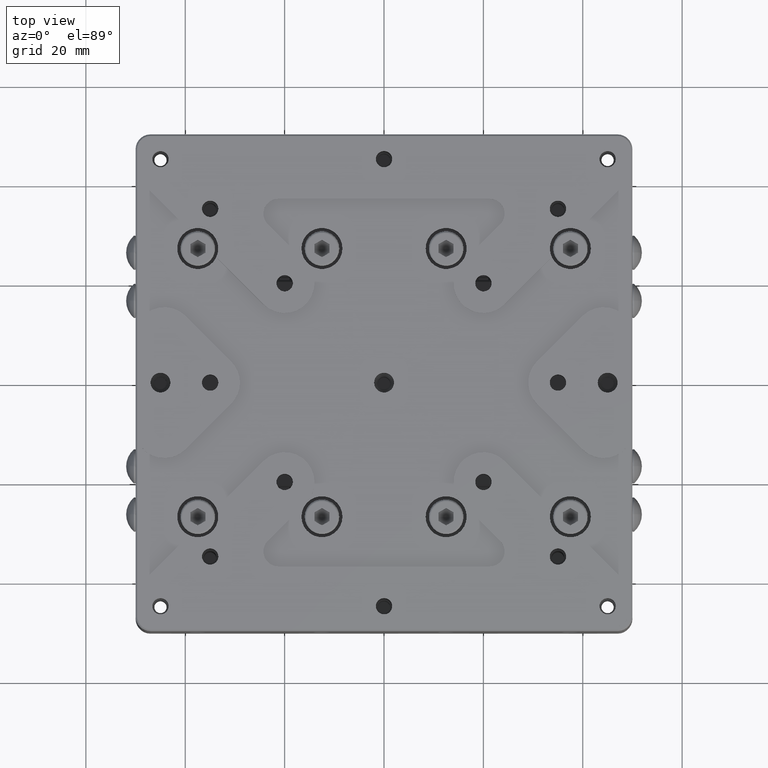
[diagram: clean part render]
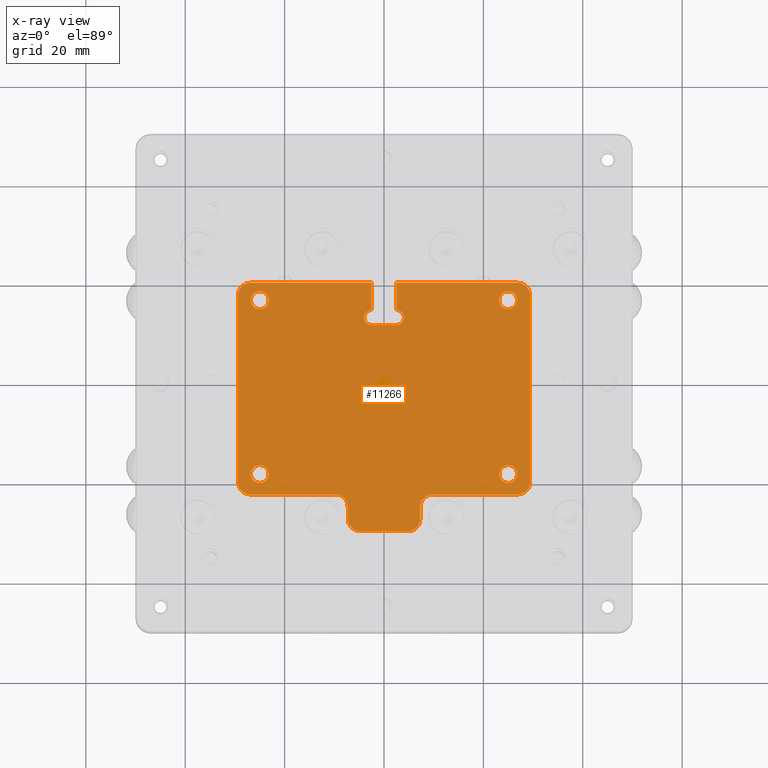
[diagram: x-ray — body ghosted, one internal face saturated and labeled with its STEP entity id]
A machine part, top view, then the same camera in x-ray: the body is ghosted and one INTERNAL B-rep face — a face not visible from any outside direction — is saturated and labeled: STEP entity #11266.
In plain terms, the highlighted planar face has unit normal (0, 0, -1).
Its self-contained STEP definition (entity closure, byte-faithful):
#43 = CARTESIAN_POINT ( 'NONE',  ( -2.500000000000000000, 0.000000000000000000, -8.300000000000000711 ) ) ;
#57 = VERTEX_POINT ( 'NONE', #25783 ) ;
#198 = LINE ( 'NONE', #4499, #8644 ) ;
#263 = DIRECTION ( 'NONE',  ( 1.000000000000000000, 0.000000000000000000, 0.000000000000000000 ) ) ;
#289 = CARTESIAN_POINT ( 'NONE',  ( 9.799999999999998934, -22.09999999839769913, -8.299999999962889063 ) ) ;
#466 = EDGE_LOOP ( 'NONE', ( #25840, #602 ) ) ;
#485 = CARTESIAN_POINT ( 'NONE',  ( -25.00000000000000000, 17.00000000000000000, -8.300000000000000711 ) ) ;
#500 = CARTESIAN_POINT ( 'NONE',  ( 2.500000000000000000, 13.50000000000000000, -8.300000000000000711 ) ) ;
#602 = ORIENTED_EDGE ( 'NONE', *, *, #10207, .F. ) ;
#612 = DIRECTION ( 'NONE',  ( 0.000000000000000000, 0.000000000000000000, 1.000000000000000000 ) ) ;
#626 = VERTEX_POINT ( 'NONE', #24439 ) ;
#631 = DIRECTION ( 'NONE',  ( 0.000000000000000000, -1.000000000000000000, 0.000000000000000000 ) ) ;
#852 = CIRCLE ( 'NONE', #4391, 1.799999999999999600 ) ;
#934 = CARTESIAN_POINT ( 'NONE',  ( -25.00000000000000000, -18.00000000000000000, -8.300000000000000711 ) ) ;
#1128 = EDGE_CURVE ( 'NONE', #57, #3636, #5505, .T. ) ;
#1392 = EDGE_CURVE ( 'NONE', #19921, #23276, #15421, .T. ) ;
#1412 = ORIENTED_EDGE ( 'NONE', *, *, #10201, .F. ) ;
#1420 = CARTESIAN_POINT ( 'NONE',  ( 25.00000000000000000, 17.00000000000000000, -8.300000000000000711 ) ) ;
#1450 = EDGE_CURVE ( 'NONE', #20060, #9101, #8128, .T. ) ;
#1626 = EDGE_CURVE ( 'NONE', #24588, #8090, #5462, .T. ) ;
#1817 = EDGE_CURVE ( 'NONE', #18175, #14577, #19442, .T. ) ;
#1825 = EDGE_CURVE ( 'NONE', #6957, #10404, #11731, .T. ) ;
#2186 = CIRCLE ( 'NONE', #23176, 1.500000000000000000 ) ;
#2339 = CARTESIAN_POINT ( 'NONE',  ( 23.19999999999999929, -18.00000000000000000, -8.300000000000000711 ) ) ;
#2389 = CARTESIAN_POINT ( 'NONE',  ( -9.799999999999998934, -22.09999999996345110, -8.299999999963439734 ) ) ;
#2447 = CIRCLE ( 'NONE', #6006, 1.799999999999999600 ) ;
#2467 = CARTESIAN_POINT ( 'NONE',  ( 4.000000000000000000, 13.50000000000000000, -8.300000000000000711 ) ) ;
#2688 = CARTESIAN_POINT ( 'NONE',  ( 29.39999999753645099, 17.99999997678999719, -8.299999997234408511 ) ) ;
#2747 = DIRECTION ( 'NONE',  ( 0.000000000000000000, 0.000000000000000000, -1.000000000000000000 ) ) ;
#3020 = AXIS2_PLACEMENT_3D ( 'NONE', #17139, #2747, #8906 ) ;
#3028 = CARTESIAN_POINT ( 'NONE',  ( -29.39999999754850180, -19.59999997911500103, -8.299999997192498924 ) ) ;
#3049 = DIRECTION ( 'NONE',  ( 0.000000000000000000, 1.000000000000000000, 0.000000000000000000 ) ) ;
#3073 = CARTESIAN_POINT ( 'NONE',  ( -7.300000001143709838, -24.59999998012499844, -8.300000002673369792 ) ) ;
#3077 = ORIENTED_EDGE ( 'NONE', *, *, #14366, .F. ) ;
#3098 = CARTESIAN_POINT ( 'NONE',  ( -2.500000000000000000, 15.00000000000000000, -8.300000000000000711 ) ) ;
#3219 = VECTOR ( 'NONE', #21913, 1000.000000000000000 ) ;
#3357 = EDGE_CURVE ( 'NONE', #10404, #6957, #17144, .T. ) ;
#3528 = FACE_OUTER_BOUND ( 'NONE', #4522, .T. ) ;
#3575 = ORIENTED_EDGE ( 'NONE', *, *, #25139, .F. ) ;
#3636 = VERTEX_POINT ( 'NONE', #7237 ) ;
#3668 = DIRECTION ( 'NONE',  ( -1.000000000000000000, 0.000000000000000000, 0.000000000000000000 ) ) ;
#3801 = FACE_BOUND ( 'NONE', #6203, .T. ) ;
#3817 = DIRECTION ( 'NONE',  ( 0.000000000000000000, 0.000000000000000000, 1.000000000000000000 ) ) ;
#3919 = DIRECTION ( 'NONE',  ( 0.000000000000000000, 0.000000000000000000, 1.000000000000000000 ) ) ;
#4057 = VERTEX_POINT ( 'NONE', #10893 ) ;
#4063 = DIRECTION ( 'NONE',  ( -1.000000000000000000, 0.000000000000000000, 0.000000000000000000 ) ) ;
#4215 = CIRCLE ( 'NONE', #6906, 1.799999999999999600 ) ;
#4391 = AXIS2_PLACEMENT_3D ( 'NONE', #11927, #3817, #14023 ) ;
#4477 = CIRCLE ( 'NONE', #18764, 1.799999999999999600 ) ;
#4499 = CARTESIAN_POINT ( 'NONE',  ( 0.000000000000000000, -29.49999999685000063, -8.300000000000000711 ) ) ;
#4522 = EDGE_LOOP ( 'NONE', ( #10870, #18336, #13216, #13798, #19039, #3575, #17064, #7649, #14482, #13995, #13212, #22723, #3077, #8778, #6290, #14325, #12187, #19127, #25537, #10980, #13240, #1412, #7363 ) ) ;
#4722 = EDGE_CURVE ( 'NONE', #19634, #22404, #8037, .T. ) ;
#4845 = CARTESIAN_POINT ( 'NONE',  ( 0.000000000000000000, 20.50000000000000000, -8.300000000000000711 ) ) ;
#4952 = VERTEX_POINT ( 'NONE', #25515 ) ;
#4979 = CARTESIAN_POINT ( 'NONE',  ( 2.500000000000000000, 20.50000000000000000, -8.300000000000000711 ) ) ;
#5051 = EDGE_CURVE ( 'NONE', #12380, #13897, #22019, .T. ) ;
#5059 = DIRECTION ( 'NONE',  ( 0.000000000000000000, 0.000000000000000000, 1.000000000000000000 ) ) ;
#5214 = AXIS2_PLACEMENT_3D ( 'NONE', #20655, #20375, #27233 ) ;
#5234 = LINE ( 'NONE', #20330, #8897 ) ;
#5240 = DIRECTION ( 'NONE',  ( -1.000000000000000000, 0.000000000000000000, 0.000000000000000000 ) ) ;
#5398 = LINE ( 'NONE', #17703, #10178 ) ;
#5462 = CIRCLE ( 'NONE', #15280, 2.499999996842236616 ) ;
#5505 = CIRCLE ( 'NONE', #9513, 1.799999999999999600 ) ;
#5550 = AXIS2_PLACEMENT_3D ( 'NONE', #1420, #14514, #25034 ) ;
#5665 = CARTESIAN_POINT ( 'NONE',  ( 0.000000000000000000, -22.10000000000000142, -8.300000000000000711 ) ) ;
#5749 = EDGE_CURVE ( 'NONE', #9717, #15556, #26241, .T. ) ;
#5784 = DIRECTION ( 'NONE',  ( 0.000000000000000000, 0.000000000000000000, -1.000000000000000000 ) ) ;
#5887 = FACE_BOUND ( 'NONE', #466, .T. ) ;
#6006 = AXIS2_PLACEMENT_3D ( 'NONE', #485, #5059, #17911 ) ;
#6029 = FACE_BOUND ( 'NONE', #18656, .T. ) ;
#6203 = EDGE_LOOP ( 'NONE', ( #9043, #19188 ) ) ;
#6274 = CIRCLE ( 'NONE', #15190, 2.499999999966254993 ) ;
#6290 = ORIENTED_EDGE ( 'NONE', *, *, #1392, .F. ) ;
#6369 = CARTESIAN_POINT ( 'NONE',  ( 26.80000000000000071, 17.00000000000000000, -8.300000000000000711 ) ) ;
#6392 = VERTEX_POINT ( 'NONE', #9826 ) ;
#6456 = DIRECTION ( 'NONE',  ( 1.000000000000000000, 0.000000000000000000, 0.000000000000000000 ) ) ;
#6787 = VERTEX_POINT ( 'NONE', #22398 ) ;
#6906 = AXIS2_PLACEMENT_3D ( 'NONE', #12848, #3919, #23637 ) ;
#6957 = VERTEX_POINT ( 'NONE', #18466 ) ;
#6979 = CIRCLE ( 'NONE', #17229, 1.799999999999999600 ) ;
#7139 = VERTEX_POINT ( 'NONE', #3073 ) ;
#7178 = CARTESIAN_POINT ( 'NONE',  ( -29.39999999754850180, -0.8000000000000000444, -8.299999997548498598 ) ) ;
#7215 = DIRECTION ( 'NONE',  ( 1.000000000000000000, 0.000000000000000000, 0.000000000000000000 ) ) ;
#7237 = CARTESIAN_POINT ( 'NONE',  ( -23.19999999999999929, -18.00000000000000000, -8.300000000000000711 ) ) ;
#7363 = ORIENTED_EDGE ( 'NONE', *, *, #1450, .F. ) ;
#7622 = VECTOR ( 'NONE', #631, 1000.000000000000000 ) ;
#7649 = ORIENTED_EDGE ( 'NONE', *, *, #19069, .F. ) ;
#7688 = CARTESIAN_POINT ( 'NONE',  ( 29.39999999875570325, -19.59999999999999787, -8.299999998755698272 ) ) ;
#7703 = VERTEX_POINT ( 'NONE', #26776 ) ;
#7833 = DIRECTION ( 'NONE',  ( 0.000000000000000000, 0.000000000000000000, -1.000000000000000000 ) ) ;
#8005 = VERTEX_POINT ( 'NONE', #26462 ) ;
#8037 = LINE ( 'NONE', #5665, #14545 ) ;
#8090 = VERTEX_POINT ( 'NONE', #2688 ) ;
#8128 = CIRCLE ( 'NONE', #16609, 1.500000000000000000 ) ;
#8319 = CARTESIAN_POINT ( 'NONE',  ( 2.500000000000000000, 15.00000000000000000, -8.300000000000000711 ) ) ;
#8398 = CARTESIAN_POINT ( 'NONE',  ( 25.00000000000000000, 17.00000000000000000, -8.300000000000000711 ) ) ;
#8556 = DIRECTION ( 'NONE',  ( 0.000000000000000000, 0.000000000000000000, 1.000000000000000000 ) ) ;
#8644 = VECTOR ( 'NONE', #23239, 1000.000000000000000 ) ;
#8778 = ORIENTED_EDGE ( 'NONE', *, *, #16171, .F. ) ;
#8897 = VECTOR ( 'NONE', #15715, 1000.000000000000000 ) ;
#8906 = DIRECTION ( 'NONE',  ( -1.000000000000000000, 0.000000000000000000, 0.000000000000000000 ) ) ;
#8937 = AXIS2_PLACEMENT_3D ( 'NONE', #12586, #23236, #3668 ) ;
#8981 = ORIENTED_EDGE ( 'NONE', *, *, #1825, .F. ) ;
#8993 = DIRECTION ( 'NONE',  ( 0.000000000000000000, 0.000000000000000000, 1.000000000000000000 ) ) ;
#9043 = ORIENTED_EDGE ( 'NONE', *, *, #1128, .F. ) ;
#9101 = VERTEX_POINT ( 'NONE', #8319 ) ;
#9230 = CIRCLE ( 'NONE', #5214, 2.500000000018554935 ) ;
#9367 = CARTESIAN_POINT ( 'NONE',  ( -4.799999999999999822, -29.49999999842384923, -8.300000000004500222 ) ) ;
#9410 = EDGE_CURVE ( 'NONE', #15556, #7139, #5234, .T. ) ;
#9461 = CARTESIAN_POINT ( 'NONE',  ( 2.500000000000000000, 0.000000000000000000, -8.300000000000000711 ) ) ;
#9513 = AXIS2_PLACEMENT_3D ( 'NONE', #934, #15999, #5240 ) ;
#9522 = AXIS2_PLACEMENT_3D ( 'NONE', #12070, #5784, #20607 ) ;
#9717 = VERTEX_POINT ( 'NONE', #9367 ) ;
#9826 = CARTESIAN_POINT ( 'NONE',  ( 4.799999992160500106, -29.49999999724375144, -8.299999998337138862 ) ) ;
#10063 = VERTEX_POINT ( 'NONE', #289 ) ;
#10178 = VECTOR ( 'NONE', #7215, 1000.000000000000000 ) ;
#10201 = EDGE_CURVE ( 'NONE', #9101, #12343, #24717, .T. ) ;
#10207 = EDGE_CURVE ( 'NONE', #6787, #24829, #4477, .T. ) ;
#10404 = VERTEX_POINT ( 'NONE', #6369 ) ;
#10502 = DIRECTION ( 'NONE',  ( 0.000000000000000000, 0.000000000000000000, -1.000000000000000000 ) ) ;
#10710 = CIRCLE ( 'NONE', #12935, 2.500000000054569682 ) ;
#10858 = EDGE_CURVE ( 'NONE', #8090, #13355, #23822, .T. ) ;
#10870 = ORIENTED_EDGE ( 'NONE', *, *, #25748, .F. ) ;
#10893 = CARTESIAN_POINT ( 'NONE',  ( -23.19999999999999929, 17.00000000000000000, -8.300000000000000711 ) ) ;
#10980 = ORIENTED_EDGE ( 'NONE', *, *, #1626, .F. ) ;
#11263 = LINE ( 'NONE', #4845, #12125 ) ;
#11266 = ADVANCED_FACE ( 'NONE', ( #3528, #5887, #12176, #3801, #6029 ), #20727, .F. ) ;
#11317 = CARTESIAN_POINT ( 'NONE',  ( -2.500000000000000000, 20.49999999684985141, -8.299999998949829205 ) ) ;
#11557 = CIRCLE ( 'NONE', #21385, 1.500000000000000000 ) ;
#11634 = CARTESIAN_POINT ( 'NONE',  ( -25.00000000000000000, -18.00000000000000000, -8.300000000000000711 ) ) ;
#11695 = CARTESIAN_POINT ( 'NONE',  ( -26.89999999128999875, -22.09999999841824803, -8.299999996836509908 ) ) ;
#11714 = EDGE_CURVE ( 'NONE', #12343, #24588, #11263, .T. ) ;
#11731 = CIRCLE ( 'NONE', #12159, 1.799999999999999600 ) ;
#11829 = EDGE_CURVE ( 'NONE', #626, #10063, #15598, .T. ) ;
#11927 = CARTESIAN_POINT ( 'NONE',  ( -25.00000000000000000, 17.00000000000000000, -8.300000000000000711 ) ) ;
#11978 = CIRCLE ( 'NONE', #21352, 2.499999999911781234 ) ;
#12046 = DIRECTION ( 'NONE',  ( 0.000000000000000000, -1.000000000000000000, 0.000000000000000000 ) ) ;
#12070 = CARTESIAN_POINT ( 'NONE',  ( -26.89999999999999858, -19.59999999999999787, -8.299999996836509908 ) ) ;
#12097 = CARTESIAN_POINT ( 'NONE',  ( -7.299999998412539881, -26.99999999215999580, -8.299999999976080289 ) ) ;
#12125 = VECTOR ( 'NONE', #263, 1000.000000000000000 ) ;
#12159 = AXIS2_PLACEMENT_3D ( 'NONE', #8398, #13147, #21699 ) ;
#12176 = FACE_BOUND ( 'NONE', #19019, .T. ) ;
#12187 = ORIENTED_EDGE ( 'NONE', *, *, #11829, .F. ) ;
#12343 = VERTEX_POINT ( 'NONE', #4979 ) ;
#12380 = VERTEX_POINT ( 'NONE', #3028 ) ;
#12586 = CARTESIAN_POINT ( 'NONE',  ( 4.799999999999999822, -27.00000000000000000, -8.299999997461778634 ) ) ;
#12760 = VECTOR ( 'NONE', #17660, 1000.000000000000000 ) ;
#12848 = CARTESIAN_POINT ( 'NONE',  ( 25.00000000000000000, -18.00000000000000000, -8.300000000000000711 ) ) ;
#12935 = AXIS2_PLACEMENT_3D ( 'NONE', #25623, #612, #6456 ) ;
#12943 = VECTOR ( 'NONE', #3049, 1000.000000000000000 ) ;
#13114 = LINE ( 'NONE', #27533, #15905 ) ;
#13147 = DIRECTION ( 'NONE',  ( 0.000000000000000000, 0.000000000000000000, 1.000000000000000000 ) ) ;
#13212 = ORIENTED_EDGE ( 'NONE', *, *, #9410, .F. ) ;
#13216 = ORIENTED_EDGE ( 'NONE', *, *, #25773, .F. ) ;
#13240 = ORIENTED_EDGE ( 'NONE', *, *, #11714, .F. ) ;
#13355 = VERTEX_POINT ( 'NONE', #7688 ) ;
#13798 = ORIENTED_EDGE ( 'NONE', *, *, #1817, .F. ) ;
#13897 = VERTEX_POINT ( 'NONE', #16733 ) ;
#13995 = ORIENTED_EDGE ( 'NONE', *, *, #16380, .F. ) ;
#14023 = DIRECTION ( 'NONE',  ( -1.000000000000000000, 0.000000000000000000, 0.000000000000000000 ) ) ;
#14275 = DIRECTION ( 'NONE',  ( 0.000000000000000000, 0.000000000000000000, -1.000000000000000000 ) ) ;
#14325 = ORIENTED_EDGE ( 'NONE', *, *, #23690, .F. ) ;
#14366 = EDGE_CURVE ( 'NONE', #6392, #9717, #198, .T. ) ;
#14465 = CARTESIAN_POINT ( 'NONE',  ( -26.89999999999999858, 18.00000000000000000, -8.299999999962889063 ) ) ;
#14482 = ORIENTED_EDGE ( 'NONE', *, *, #4722, .F. ) ;
#14514 = DIRECTION ( 'NONE',  ( 0.000000000000000000, 0.000000000000000000, 1.000000000000000000 ) ) ;
#14545 = VECTOR ( 'NONE', #16696, 1000.000000000000000 ) ;
#14577 = VERTEX_POINT ( 'NONE', #3098 ) ;
#14809 = ORIENTED_EDGE ( 'NONE', *, *, #3357, .F. ) ;
#15190 = AXIS2_PLACEMENT_3D ( 'NONE', #27144, #7833, #27410 ) ;
#15280 = AXIS2_PLACEMENT_3D ( 'NONE', #16780, #14275, #4063 ) ;
#15421 = LINE ( 'NONE', #19327, #17100 ) ;
#15556 = VERTEX_POINT ( 'NONE', #12097 ) ;
#15598 = LINE ( 'NONE', #23726, #3219 ) ;
#15715 = DIRECTION ( 'NONE',  ( 0.000000000000000000, 1.000000000000000000, 0.000000000000000000 ) ) ;
#15905 = VECTOR ( 'NONE', #25574, 1000.000000000000000 ) ;
#15999 = DIRECTION ( 'NONE',  ( 0.000000000000000000, 0.000000000000000000, 1.000000000000000000 ) ) ;
#16171 = EDGE_CURVE ( 'NONE', #23276, #6392, #16959, .T. ) ;
#16380 = EDGE_CURVE ( 'NONE', #7139, #19634, #10710, .T. ) ;
#16609 = AXIS2_PLACEMENT_3D ( 'NONE', #500, #8993, #17507 ) ;
#16612 = EDGE_CURVE ( 'NONE', #13355, #626, #6274, .T. ) ;
#16696 = DIRECTION ( 'NONE',  ( -1.000000000000000000, 0.000000000000000000, 0.000000000000000000 ) ) ;
#16733 = CARTESIAN_POINT ( 'NONE',  ( -29.39999999875570325, 18.00000000000000000, -8.299999998755698272 ) ) ;
#16780 = CARTESIAN_POINT ( 'NONE',  ( 26.89999999999999858, 18.00000000000000000, -8.299999996893349774 ) ) ;
#16959 = CIRCLE ( 'NONE', #8937, 2.499999997483430381 ) ;
#17064 = ORIENTED_EDGE ( 'NONE', *, *, #5051, .F. ) ;
#17100 = VECTOR ( 'NONE', #25925, 1000.000000000000000 ) ;
#17139 = CARTESIAN_POINT ( 'NONE',  ( -4.799999999999999822, -27.00000000000000000, -8.299999999976080289 ) ) ;
#17144 = CIRCLE ( 'NONE', #5550, 1.799999999999999600 ) ;
#17217 = CARTESIAN_POINT ( 'NONE',  ( -2.500000000000000000, 13.50000000000000000, -8.300000000000000711 ) ) ;
#17229 = AXIS2_PLACEMENT_3D ( 'NONE', #11634, #24377, #20161 ) ;
#17507 = DIRECTION ( 'NONE',  ( 1.000000000000000000, 0.000000000000000000, 0.000000000000000000 ) ) ;
#17653 = CARTESIAN_POINT ( 'NONE',  ( 29.39999999754850180, -0.8000000000000000444, -8.299999997548498598 ) ) ;
#17660 = DIRECTION ( 'NONE',  ( 0.000000000000000000, 1.000000000000000000, 0.000000000000000000 ) ) ;
#17703 = CARTESIAN_POINT ( 'NONE',  ( 0.000000000000000000, 12.00000000000000000, -8.300000000000000711 ) ) ;
#17911 = DIRECTION ( 'NONE',  ( -1.000000000000000000, 0.000000000000000000, 0.000000000000000000 ) ) ;
#18175 = VERTEX_POINT ( 'NONE', #11317 ) ;
#18336 = ORIENTED_EDGE ( 'NONE', *, *, #25004, .F. ) ;
#18466 = CARTESIAN_POINT ( 'NONE',  ( 23.19999999999999929, 17.00000000000000000, -8.300000000000000711 ) ) ;
#18549 = CARTESIAN_POINT ( 'NONE',  ( 7.299999999981450216, -24.60000000000000142, -8.299999999981448440 ) ) ;
#18656 = EDGE_LOOP ( 'NONE', ( #8981, #14809 ) ) ;
#18764 = AXIS2_PLACEMENT_3D ( 'NONE', #22620, #26954, #20230 ) ;
#19019 = EDGE_LOOP ( 'NONE', ( #20325, #20578 ) ) ;
#19039 = ORIENTED_EDGE ( 'NONE', *, *, #23297, .F. ) ;
#19069 = EDGE_CURVE ( 'NONE', #22404, #12380, #27372, .T. ) ;
#19127 = ORIENTED_EDGE ( 'NONE', *, *, #16612, .F. ) ;
#19184 = CARTESIAN_POINT ( 'NONE',  ( 2.500000000000000000, 13.50000000000000000, -8.300000000000000711 ) ) ;
#19188 = ORIENTED_EDGE ( 'NONE', *, *, #27265, .F. ) ;
#19327 = CARTESIAN_POINT ( 'NONE',  ( 7.299999999999999822, 0.000000000000000000, -8.300000000000000711 ) ) ;
#19412 = CARTESIAN_POINT ( 'NONE',  ( 7.299999998773500032, -26.99999997679000074, -8.299999998730887896 ) ) ;
#19442 = LINE ( 'NONE', #43, #26917 ) ;
#19634 = VERTEX_POINT ( 'NONE', #2389 ) ;
#19921 = VERTEX_POINT ( 'NONE', #18549 ) ;
#20060 = VERTEX_POINT ( 'NONE', #2467 ) ;
#20161 = DIRECTION ( 'NONE',  ( -1.000000000000000000, 0.000000000000000000, 0.000000000000000000 ) ) ;
#20201 = EDGE_CURVE ( 'NONE', #4057, #24031, #2447, .T. ) ;
#20230 = DIRECTION ( 'NONE',  ( -1.000000000000000000, 0.000000000000000000, 0.000000000000000000 ) ) ;
#20325 = ORIENTED_EDGE ( 'NONE', *, *, #25581, .F. ) ;
#20330 = CARTESIAN_POINT ( 'NONE',  ( -7.299999996848999473, 0.000000000000000000, -8.300000000000000711 ) ) ;
#20375 = DIRECTION ( 'NONE',  ( 0.000000000000000000, 0.000000000000000000, 1.000000000000000000 ) ) ;
#20383 = EDGE_CURVE ( 'NONE', #24829, #6787, #4215, .T. ) ;
#20578 = ORIENTED_EDGE ( 'NONE', *, *, #20201, .F. ) ;
#20607 = DIRECTION ( 'NONE',  ( -1.000000000000000000, 0.000000000000000000, 0.000000000000000000 ) ) ;
#20655 = CARTESIAN_POINT ( 'NONE',  ( 9.799999999999998934, -24.60000000000000142, -8.299999999962889063 ) ) ;
#20727 = PLANE ( 'NONE',  #26862 ) ;
#21134 = CARTESIAN_POINT ( 'NONE',  ( 0.000000000000000000, 0.000000000000000000, -8.300000000000000711 ) ) ;
#21153 = DIRECTION ( 'NONE',  ( 0.000000000000000000, 0.000000000000000000, 1.000000000000000000 ) ) ;
#21352 = AXIS2_PLACEMENT_3D ( 'NONE', #14465, #22877, #22741 ) ;
#21385 = AXIS2_PLACEMENT_3D ( 'NONE', #17217, #21153, #25780 ) ;
#21430 = CARTESIAN_POINT ( 'NONE',  ( -26.80000000000000071, 17.00000000000000000, -8.300000000000000711 ) ) ;
#21699 = DIRECTION ( 'NONE',  ( -1.000000000000000000, 0.000000000000000000, 0.000000000000000000 ) ) ;
#21913 = DIRECTION ( 'NONE',  ( -1.000000000000000000, 0.000000000000000000, 0.000000000000000000 ) ) ;
#22019 = LINE ( 'NONE', #7178, #12760 ) ;
#22398 = CARTESIAN_POINT ( 'NONE',  ( 26.80000000000000071, -18.00000000000000000, -8.300000000000000711 ) ) ;
#22404 = VERTEX_POINT ( 'NONE', #11695 ) ;
#22620 = CARTESIAN_POINT ( 'NONE',  ( 25.00000000000000000, -18.00000000000000000, -8.300000000000000711 ) ) ;
#22639 = CARTESIAN_POINT ( 'NONE',  ( 26.89999999128999875, 20.49999999842500031, -8.299999998446679683 ) ) ;
#22723 = ORIENTED_EDGE ( 'NONE', *, *, #5749, .F. ) ;
#22741 = DIRECTION ( 'NONE',  ( -1.000000000000000000, 0.000000000000000000, 0.000000000000000000 ) ) ;
#22877 = DIRECTION ( 'NONE',  ( 0.000000000000000000, 0.000000000000000000, -1.000000000000000000 ) ) ;
#23176 = AXIS2_PLACEMENT_3D ( 'NONE', #19184, #8556, #27587 ) ;
#23236 = DIRECTION ( 'NONE',  ( 0.000000000000000000, 0.000000000000000000, -1.000000000000000000 ) ) ;
#23239 = DIRECTION ( 'NONE',  ( -1.000000000000000000, 0.000000000000000000, 0.000000000000000000 ) ) ;
#23276 = VERTEX_POINT ( 'NONE', #19412 ) ;
#23297 = EDGE_CURVE ( 'NONE', #8005, #18175, #13114, .T. ) ;
#23637 = DIRECTION ( 'NONE',  ( -1.000000000000000000, 0.000000000000000000, 0.000000000000000000 ) ) ;
#23690 = EDGE_CURVE ( 'NONE', #10063, #19921, #9230, .T. ) ;
#23726 = CARTESIAN_POINT ( 'NONE',  ( 0.000000000000000000, -22.09999999685000205, -8.300000000000000711 ) ) ;
#23822 = LINE ( 'NONE', #17653, #7622 ) ;
#24031 = VERTEX_POINT ( 'NONE', #21430 ) ;
#24377 = DIRECTION ( 'NONE',  ( 0.000000000000000000, 0.000000000000000000, 1.000000000000000000 ) ) ;
#24439 = CARTESIAN_POINT ( 'NONE',  ( 26.89999999999999858, -22.09999999684495009, -8.299999998399698597 ) ) ;
#24588 = VERTEX_POINT ( 'NONE', #22639 ) ;
#24717 = LINE ( 'NONE', #9461, #12943 ) ;
#24829 = VERTEX_POINT ( 'NONE', #2339 ) ;
#25004 = EDGE_CURVE ( 'NONE', #7703, #4952, #5398, .T. ) ;
#25034 = DIRECTION ( 'NONE',  ( -1.000000000000000000, 0.000000000000000000, 0.000000000000000000 ) ) ;
#25139 = EDGE_CURVE ( 'NONE', #13897, #8005, #11978, .T. ) ;
#25515 = CARTESIAN_POINT ( 'NONE',  ( 2.500000000000000000, 12.00000000000000000, -8.300000000000000711 ) ) ;
#25537 = ORIENTED_EDGE ( 'NONE', *, *, #10858, .F. ) ;
#25574 = DIRECTION ( 'NONE',  ( 1.000000000000000000, 0.000000000000000000, 0.000000000000000000 ) ) ;
#25581 = EDGE_CURVE ( 'NONE', #24031, #4057, #852, .T. ) ;
#25623 = CARTESIAN_POINT ( 'NONE',  ( -9.799999999999998934, -24.60000000000000142, -8.299999999926880534 ) ) ;
#25748 = EDGE_CURVE ( 'NONE', #4952, #20060, #2186, .T. ) ;
#25773 = EDGE_CURVE ( 'NONE', #14577, #7703, #11557, .T. ) ;
#25780 = DIRECTION ( 'NONE',  ( 1.000000000000000000, 0.000000000000000000, 0.000000000000000000 ) ) ;
#25783 = CARTESIAN_POINT ( 'NONE',  ( -26.80000000000000071, -18.00000000000000000, -8.300000000000000711 ) ) ;
#25840 = ORIENTED_EDGE ( 'NONE', *, *, #20383, .F. ) ;
#25891 = DIRECTION ( 'NONE',  ( 0.000000000000000000, -1.000000000000000000, 0.000000000000000000 ) ) ;
#25925 = DIRECTION ( 'NONE',  ( 0.000000000000000000, -1.000000000000000000, 0.000000000000000000 ) ) ;
#26241 = CIRCLE ( 'NONE', #3020, 2.499999999997725375 ) ;
#26462 = CARTESIAN_POINT ( 'NONE',  ( -26.89999999128999875, 20.49999999684609975, -8.299999998428118531 ) ) ;
#26776 = CARTESIAN_POINT ( 'NONE',  ( -2.500000000000000000, 12.00000000000000000, -8.300000000000000711 ) ) ;
#26862 = AXIS2_PLACEMENT_3D ( 'NONE', #21134, #10502, #12046 ) ;
#26917 = VECTOR ( 'NONE', #25891, 1000.000000000000000 ) ;
#26954 = DIRECTION ( 'NONE',  ( 0.000000000000000000, 0.000000000000000000, 1.000000000000000000 ) ) ;
#27144 = CARTESIAN_POINT ( 'NONE',  ( 26.89999999999999858, -19.59999999999999787, -8.299999999962889063 ) ) ;
#27233 = DIRECTION ( 'NONE',  ( 1.000000000000000000, 0.000000000000000000, 0.000000000000000000 ) ) ;
#27265 = EDGE_CURVE ( 'NONE', #3636, #57, #6979, .T. ) ;
#27372 = CIRCLE ( 'NONE', #9522, 2.499999996839863403 ) ;
#27410 = DIRECTION ( 'NONE',  ( -1.000000000000000000, 0.000000000000000000, 0.000000000000000000 ) ) ;
#27533 = CARTESIAN_POINT ( 'NONE',  ( 0.000000000000000000, 20.49999999685000063, -8.300000000000000711 ) ) ;
#27587 = DIRECTION ( 'NONE',  ( 1.000000000000000000, 0.000000000000000000, 0.000000000000000000 ) ) ;